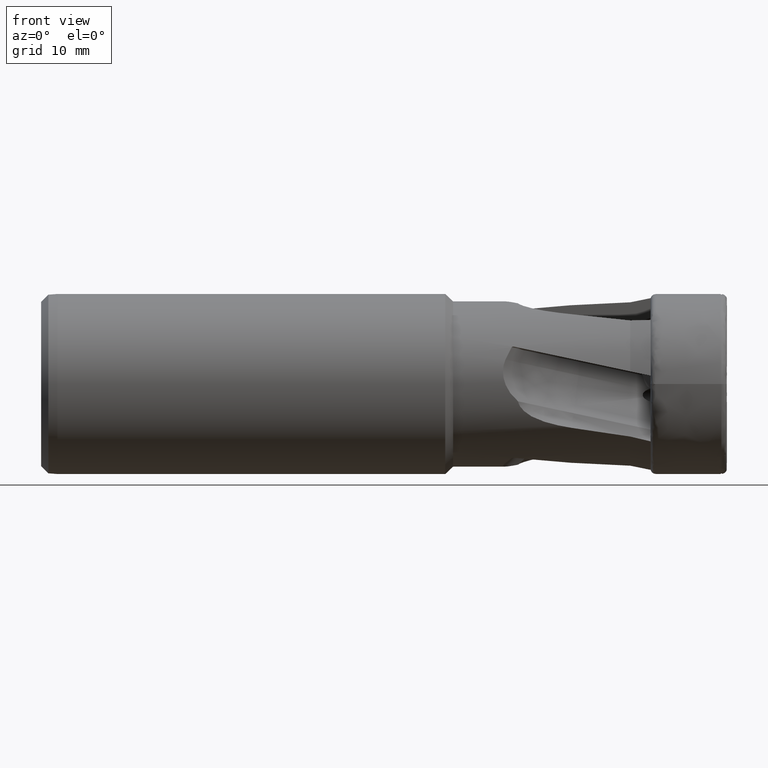
[diagram: clean part render]
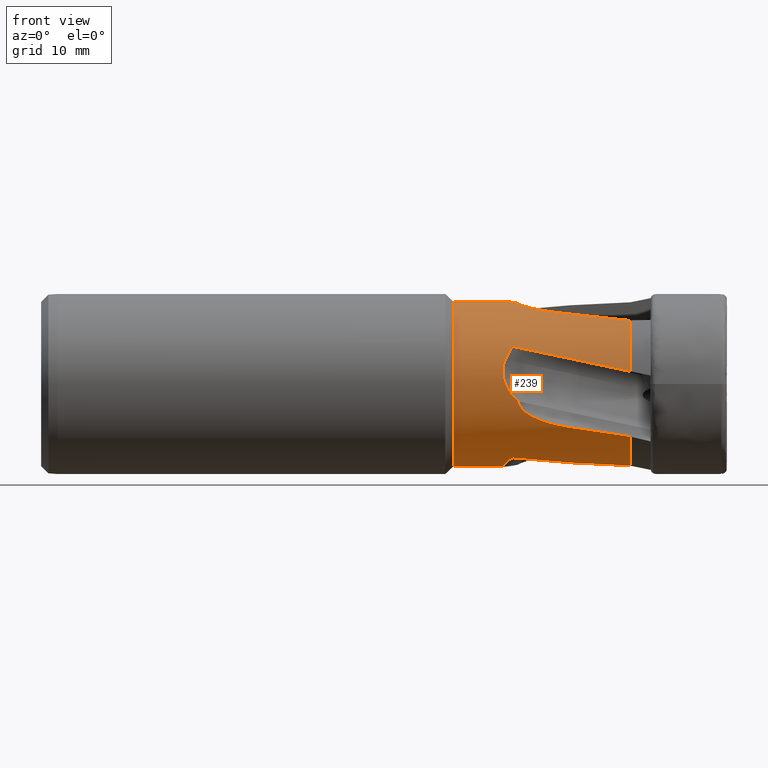
[diagram: same view with one face highlighted and labeled with its STEP entity id]
A machine part, front view. The second image highlights one B-rep face of the part: STEP entity #239.
In plain terms, the highlighted cylindrical surface (partial cylindrical patch) has radius 11.47 mm, axis along (1, -0, -0).
Its self-contained STEP definition (entity closure, byte-faithful):
#46 = LINE ( 'NONE', #5876, #49 ) ;
#49 = VECTOR ( 'NONE', #5875, 1000.000000000000000 ) ;
#175 = LINE ( 'NONE', #1548, #176 ) ;
#176 = VECTOR ( 'NONE', #1549, 1000.000000000000000 ) ;
#239 = ADVANCED_FACE ( 'NONE', ( #5425 ), #5401, .T. ) ;
#344 = VERTEX_POINT ( 'NONE', #7505 ) ;
#353 = VERTEX_POINT ( 'NONE', #7379 ) ;
#362 = VERTEX_POINT ( 'NONE', #7557 ) ;
#363 = VERTEX_POINT ( 'NONE', #7550 ) ;
#395 = VERTEX_POINT ( 'NONE', #7449 ) ;
#402 = VERTEX_POINT ( 'NONE', #7525 ) ;
#1331 = CARTESIAN_POINT ( 'NONE',  ( -12.83564090980896600, -1.707609156973199700, -11.34217664150144800 ) ) ;
#1333 = CARTESIAN_POINT ( 'NONE',  ( -20.94019709434659000, -6.138893819137329000, 9.688905133055930800 ) ) ;
#1336 = CARTESIAN_POINT ( 'NONE',  ( -12.83564090980896900, -7.334796149920546100, 8.818257505829072000 ) ) ;
#1342 = CARTESIAN_POINT ( 'NONE',  ( -20.94019709434659000, -9.715598794061284200, -6.096559691566625400 ) ) ;
#1344 = CARTESIAN_POINT ( 'NONE',  ( -28.99299443426411200, -5.141960667818126200, -10.25286011270081600 ) ) ;
#1351 = CARTESIAN_POINT ( 'NONE',  ( -28.99299443426402700, -10.23032654813843400, 5.186648119783528800 ) ) ;
#1353 = CARTESIAN_POINT ( 'NONE',  ( -12.83564090980898300, -8.850177546515995500, -7.296249543097644600 ) ) ;
#1472 = CARTESIAN_POINT ( 'NONE',  ( -12.83564090980896600, -11.33461784526522800, 1.757082326413891900 ) ) ;
#1482 = CARTESIAN_POINT ( 'NONE',  ( -18.46949985436407400, -11.14910405896588200, 2.953797950446352100 ) ) ;
#1488 = CARTESIAN_POINT ( 'NONE',  ( -23.90021819924628900, -10.77793590965708000, 4.106524220923940800 ) ) ;
#1489 = CARTESIAN_POINT ( 'NONE',  ( -28.99299443426402700, -10.23032654813843400, 5.186648119783528800 ) ) ;
#1548 = CARTESIAN_POINT ( 'NONE',  ( 0.0000000000000000000, 1.404669878622014200E-015, 11.47000000000000100 ) ) ;
#1549 = DIRECTION ( 'NONE',  ( 1.000000000000000000, -0.0000000000000000000, -0.0000000000000000000 ) ) ;
#1964 = EDGE_CURVE ( 'NONE', #395, #362, #7894, .T. ) ;
#1968 = EDGE_CURVE ( 'NONE', #4126, #4088, #2619, .T. ) ;
#1981 = EDGE_CURVE ( 'NONE', #7678, #395, #7882, .T. ) ;
#1982 = EDGE_CURVE ( 'NONE', #7700, #7720, #2590, .T. ) ;
#2058 =( BOUNDED_CURVE ( )  B_SPLINE_CURVE ( 3, ( #1472, #1482, #1488, #1489 ),
 .UNSPECIFIED., .F., .F. ) 
 B_SPLINE_CURVE_WITH_KNOTS ( ( 4, 4 ),
 ( 1.720227961580528700, 2.035655008558144600 ),
 .UNSPECIFIED. ) 
 CURVE ( )  GEOMETRIC_REPRESENTATION_ITEM ( )  RATIONAL_B_SPLINE_CURVE ( ( 1.000000000000000000, 0.9917259865312513200, 0.9917259865312513200, 1.000000000000000000 ) ) 
 REPRESENTATION_ITEM ( '' )  );
#2118 = EDGE_CURVE ( 'NONE', #4088, #4112, #4028, .T. ) ;
#2143 = EDGE_CURVE ( 'NONE', #4128, #344, #4061, .T. ) ;
#2149 = EDGE_CURVE ( 'NONE', #362, #4112, #4068, .T. ) ;
#2152 = EDGE_CURVE ( 'NONE', #4094, #402, #4041, .T. ) ;
#2156 = EDGE_CURVE ( 'NONE', #344, #363, #4060, .T. ) ;
#2157 = EDGE_CURVE ( 'NONE', #353, #4120, #4045, .T. ) ;
#2161 = EDGE_CURVE ( 'NONE', #402, #7751, #4063, .T. ) ;
#2164 = EDGE_CURVE ( 'NONE', #363, #353, #4025, .T. ) ;
#2250 = EDGE_CURVE ( 'NONE', #4099, #7583, #4767, .T. ) ;
#2353 = CARTESIAN_POINT ( 'NONE',  ( -12.83564090980896600, -11.33461784526522800, 1.757082326413891900 ) ) ;
#2379 = CARTESIAN_POINT ( 'NONE',  ( -30.20050388193823200, -8.673617379884037400E-016, -11.47000000000000800 ) ) ;
#2400 = CARTESIAN_POINT ( 'NONE',  ( -37.42000000000000900, 1.404669878622014200E-015, 11.47000000000000100 ) ) ;
#2417 = CARTESIAN_POINT ( 'NONE',  ( -37.42000000000000900, 0.0000000000000000000, -11.47000000000000100 ) ) ;
#2442 = CARTESIAN_POINT ( 'NONE',  ( -30.20050388193820000, 4.336808689942017700E-016, 11.47000000000000100 ) ) ;
#2590 = CIRCLE ( 'NONE', #3335, 11.47000000000000100 ) ;
#2619 = CIRCLE ( 'NONE', #3339, 11.47000000000000100 ) ;
#2623 = B_SPLINE_CURVE_WITH_KNOTS ( 'NONE', 3,
 ( #7264, #7299, #7257, #7256 ),
 .UNSPECIFIED., .F., .F.,
 ( 4, 4 ),
 ( 0.0000000000000000000, 0.008238768219979368500 ),
 .UNSPECIFIED. ) ;
#2624 = B_SPLINE_CURVE_WITH_KNOTS ( 'NONE', 3,
 ( #7273, #7272, #7267, #7266 ),
 .UNSPECIFIED., .F., .F.,
 ( 4, 4 ),
 ( 0.0000000000000000000, 0.008238768219979398000 ),
 .UNSPECIFIED. ) ;
#2886 = CARTESIAN_POINT ( 'NONE',  ( -30.34923730849577700, -2.824008630747531200, -11.12054325193721200 ) ) ;
#2954 = CARTESIAN_POINT ( 'NONE',  ( -29.33150218812901900, -5.009369270633657200, -10.31829053237169300 ) ) ;
#2959 = CARTESIAN_POINT ( 'NONE',  ( -12.83564090980896600, -1.707609156973199700, -11.34217664150144800 ) ) ;
#2960 = CARTESIAN_POINT ( 'NONE',  ( -28.99299443426411200, -5.141960667818126200, -10.25286011270081600 ) ) ;
#2965 = CARTESIAN_POINT ( 'NONE',  ( -30.15566330843127200, -3.352193005574833700, -10.96921610933898700 ) ) ;
#2969 = CARTESIAN_POINT ( 'NONE',  ( -29.91159439826444100, -3.933351167539182100, -10.79161414523776800 ) ) ;
#2975 = CARTESIAN_POINT ( 'NONE',  ( -23.90021819924637100, -4.059457661948039600, -10.79575134673645000 ) ) ;
#2976 = CARTESIAN_POINT ( 'NONE',  ( -18.46949985436410900, -2.905122843161645400, -11.16188626155323700 ) ) ;
#2984 = DIRECTION ( 'NONE',  ( 1.000000000000000000, -0.0000000000000000000, -0.0000000000000000000 ) ) ;
#2991 = DIRECTION ( 'NONE',  ( 0.0000000000000000000, 0.0000000000000000000, -1.000000000000000000 ) ) ;
#2997 = CARTESIAN_POINT ( 'NONE',  ( -30.20050388193823200, -8.673617379884037400E-016, -11.47000000000000800 ) ) ;
#3011 = CARTESIAN_POINT ( 'NONE',  ( -30.49853094884302600, -1.981474182609903400, -11.30125854086059300 ) ) ;
#3012 = CARTESIAN_POINT ( 'NONE',  ( -30.48230466896970000, -1.123798755020273700, -11.41836441503835100 ) ) ;
#3014 = CARTESIAN_POINT ( 'NONE',  ( -30.30192809661500400, -0.2711550998487489700, -11.46999999999999200 ) ) ;
#3020 = CARTESIAN_POINT ( 'NONE',  ( -30.38086668949659600, -0.5558729630017765800, -11.46005998262674400 ) ) ;
#3027 = CARTESIAN_POINT ( 'NONE',  ( -12.83564090980896900, 0.0000000000000000000, 0.0000000000000000000 ) ) ;
#3062 = DIRECTION ( 'NONE',  ( 1.000000000000000000, -0.0000000000000000000, -0.0000000000000000000 ) ) ;
#3063 = DIRECTION ( 'NONE',  ( 0.0000000000000000000, 0.0000000000000000000, -1.000000000000000000 ) ) ;
#3064 = CARTESIAN_POINT ( 'NONE',  ( -30.50609163687955000, -1.408920492449333900, -11.38681815037372000 ) ) ;
#3067 = CARTESIAN_POINT ( 'NONE',  ( -30.46620225963117400, -2.270360019682860400, -11.24664271441786300 ) ) ;
#3068 = CARTESIAN_POINT ( 'NONE',  ( -37.42000000000000900, 0.0000000000000000000, 0.0000000000000000000 ) ) ;
#3072 = CARTESIAN_POINT ( 'NONE',  ( -30.26486967845474400, -3.092159176463330700, -11.04868246085110300 ) ) ;
#3073 = CARTESIAN_POINT ( 'NONE',  ( -30.15566330843127200, -3.352193005574833700, -10.96921610933898700 ) ) ;
#3085 = CARTESIAN_POINT ( 'NONE',  ( -29.63782136507850900, -4.488875323919607800, -10.57098223300176300 ) ) ;
#3158 = EDGE_CURVE ( 'NONE', #7720, #7678, #46, .T. ) ;
#3211 = EDGE_CURVE ( 'NONE', #4128, #4126, #2624, .T. ) ;
#3215 = EDGE_CURVE ( 'NONE', #4094, #4099, #2623, .T. ) ;
#3335 = AXIS2_PLACEMENT_3D ( 'NONE', #3068, #3062, #3063 ) ;
#3339 = AXIS2_PLACEMENT_3D ( 'NONE', #3027, #2984, #2991 ) ;
#3400 = AXIS2_PLACEMENT_3D ( 'NONE', #4839, #5057, #4915 ) ;
#3552 = EDGE_LOOP ( 'NONE', ( #7815, #7829, #7875, #7868, #7807, #7761, #7832, #7831, #7805, #7793, #7839, #7827, #7792, #7809, #7838, #7781, #7819, #7765 ) ) ;
#3603 = CARTESIAN_POINT ( 'NONE',  ( -22.38875316802942800, -9.866927040030738300, -5.851520453391623600 ) ) ;
#3629 = CARTESIAN_POINT ( 'NONE',  ( -29.33150218812901900, -5.009369270633657200, -10.31829053237169300 ) ) ;
#3673 = CARTESIAN_POINT ( 'NONE',  ( -29.33150218812901900, -10.29633488223327100, 5.054343477931271700 ) ) ;
#3674 = CARTESIAN_POINT ( 'NONE',  ( -29.63782136507848400, -10.55129525349080700, 4.534957057988048500 ) ) ;
#3685 = CARTESIAN_POINT ( 'NONE',  ( -29.91159439826444500, -10.77434898917947200, 3.980400875068261300 ) ) ;
#3686 = CARTESIAN_POINT ( 'NONE',  ( -21.67064623765212200, -9.781469039307250300, -5.991587558486152400 ) ) ;
#3687 = CARTESIAN_POINT ( 'NONE',  ( -30.20050388193820000, 4.336808689942017700E-016, 11.47000000000000100 ) ) ;
#3688 = CARTESIAN_POINT ( 'NONE',  ( -30.11095661654476500, -0.2394023731543562000, 11.46999999999999400 ) ) ;
#3689 = CARTESIAN_POINT ( 'NONE',  ( -30.00370433265183200, -0.4706353598244071300, 11.46253275991387400 ) ) ;
#3690 = CARTESIAN_POINT ( 'NONE',  ( -29.75674708534769800, -0.9181651207829836200, 11.43538926862541600 ) ) ;
#3691 = CARTESIAN_POINT ( 'NONE',  ( -29.61603387988804700, -1.135492285230514900, 11.41552093078661500 ) ) ;
#3692 = CARTESIAN_POINT ( 'NONE',  ( -29.16037486312173100, -1.750160229267142100, 11.34319543056862600 ) ) ;
#3695 = CARTESIAN_POINT ( 'NONE',  ( -30.15566330843096700, -10.95448503544154500, 3.400023177609703000 ) ) ;
#3699 = CARTESIAN_POINT ( 'NONE',  ( -28.42267365700054800, -2.448017027925284900, 11.20571785433618600 ) ) ;
#3700 = CARTESIAN_POINT ( 'NONE',  ( -28.81011997143607700, -2.116152848524531600, 11.27821737401822800 ) ) ;
#3701 = CARTESIAN_POINT ( 'NONE',  ( -28.99299443426402700, -10.23032654813843400, 5.186648119783528800 ) ) ;
#3702 = CARTESIAN_POINT ( 'NONE',  ( -29.05766759824245700, -10.22337245701027600, 5.200364612871850600 ) ) ;
#3703 = CARTESIAN_POINT ( 'NONE',  ( -29.12581600605365800, -10.22760747729896400, 5.192073399667410000 ) ) ;
#3704 = CARTESIAN_POINT ( 'NONE',  ( -29.24687288060064800, -10.25112520359361300, 5.145484715503831900 ) ) ;
#3707 = CARTESIAN_POINT ( 'NONE',  ( -30.15566330843096700, -10.95448503544154500, 3.400023177609703000 ) ) ;
#3708 = CARTESIAN_POINT ( 'NONE',  ( -30.25847555195190400, -11.03036602758681200, 3.155543316883636400 ) ) ;
#3709 = CARTESIAN_POINT ( 'NONE',  ( -30.33925637410930100, -11.09953603261637800, 2.903835606415913900 ) ) ;
#3710 = CARTESIAN_POINT ( 'NONE',  ( -30.45510304833622700, -11.22245465917618800, 2.385051947269273100 ) ) ;
#3711 = CARTESIAN_POINT ( 'NONE',  ( -30.49014224607248000, -11.27666047621134200, 2.114813254976596100 ) ) ;
#3712 = CARTESIAN_POINT ( 'NONE',  ( -30.50953663413972100, -11.36454359107872800, 1.575644492150149100 ) ) ;
#3713 = CARTESIAN_POINT ( 'NONE',  ( -30.49460029452593400, -11.39845312780913200, 1.307049672325895500 ) ) ;
#3714 = CARTESIAN_POINT ( 'NONE',  ( -30.41701137103339300, -11.44715759235791300, 0.7718131953468403400 ) ) ;
#3715 = CARTESIAN_POINT ( 'NONE',  ( -30.35323390664180500, -11.46194708512609500, 0.5022812641813572100 ) ) ;
#3716 = CARTESIAN_POINT ( 'NONE',  ( -26.85252002963532200, -10.62559435387051500, -4.325541661869372100 ) ) ;
#3717 = CARTESIAN_POINT ( 'NONE',  ( -30.18270847626818200, -11.47293359298711800, -0.01766979020505024500 ) ) ;
#3718 = CARTESIAN_POINT ( 'NONE',  ( -30.07668378876319800, -11.46942171366821300, -0.2680992874868335400 ) ) ;
#3719 = CARTESIAN_POINT ( 'NONE',  ( -29.82727538318166800, -11.44789422524673800, -0.7518174522297199600 ) ) ;
#3720 = CARTESIAN_POINT ( 'NONE',  ( -29.68254670742442200, -11.42965249250480800, -0.9867488136089629400 ) ) ;
#3721 = CARTESIAN_POINT ( 'NONE',  ( -29.20677652288266700, -11.35916472900718300, -1.652027221809458900 ) ) ;
#3722 = CARTESIAN_POINT ( 'NONE',  ( -29.30031560079663700, -10.27037717379430500, 5.107222602595022900 ) ) ;
#3723 = CARTESIAN_POINT ( 'NONE',  ( -28.42267365700053400, -11.21629263940570100, -2.399099711811515200 ) ) ;
#3724 = CARTESIAN_POINT ( 'NONE',  ( -29.33150218812901900, -10.29633488223327100, 5.054343477931271700 ) ) ;
#3727 = CARTESIAN_POINT ( 'NONE',  ( -28.42267365700054800, -2.448017027925284900, 11.20571785433618600 ) ) ;
#3731 = CARTESIAN_POINT ( 'NONE',  ( -28.38128940841497200, -2.628404940429893300, 11.16631005492663700 ) ) ;
#3732 = CARTESIAN_POINT ( 'NONE',  ( -28.31627200554540700, -2.798904135911209700, 11.12454172107736700 ) ) ;
#3736 = CARTESIAN_POINT ( 'NONE',  ( -28.14925201314615700, -3.124479416761980000, 11.03752332909166300 ) ) ;
#3737 = CARTESIAN_POINT ( 'NONE',  ( -28.04813317728602200, -3.276997817959602000, 10.99290636081781300 ) ) ;
#3738 = CARTESIAN_POINT ( 'NONE',  ( -27.82477673354038200, -3.558910634942865000, 10.90490073540842700 ) ) ;
#3739 = CARTESIAN_POINT ( 'NONE',  ( -27.70163662046766400, -3.689780292182266700, 10.86109600382538100 ) ) ;
#3741 = CARTESIAN_POINT ( 'NONE',  ( -27.43703986808262100, -3.935611717225487600, 10.77445336989889700 ) ) ;
#3742 = CARTESIAN_POINT ( 'NONE',  ( -27.29474932103134000, -4.051041898021791700, 10.73140839083434500 ) ) ;
#3743 = CARTESIAN_POINT ( 'NONE',  ( -26.85252002963532200, -4.371863240330474900, 10.60661952977572400 ) ) ;
#3744 = CARTESIAN_POINT ( 'NONE',  ( -26.53656567565134600, -4.553745286817974900, 10.52879721570083000 ) ) ;
#3745 = CARTESIAN_POINT ( 'NONE',  ( -25.87649857427854600, -4.876133737347791100, 10.38342365128501900 ) ) ;
#3746 = CARTESIAN_POINT ( 'NONE',  ( -25.53899330120280500, -5.013240458507537400, 10.31731669715239800 ) ) ;
#3747 = CARTESIAN_POINT ( 'NONE',  ( -24.51232620861851100, -5.380103055833165700, 10.13361761688491400 ) ) ;
#3748 = CARTESIAN_POINT ( 'NONE',  ( -23.80966789597350100, -5.567450871091364400, 10.02995671115953200 ) ) ;
#3749 = CARTESIAN_POINT ( 'NONE',  ( -22.38875316802941400, -5.894517205499947300, 9.841301120472600400 ) ) ;
#3750 = CARTESIAN_POINT ( 'NONE',  ( -28.83581411299563500, -11.29205529414360100, -2.044893464153673800 ) ) ;
#3751 = CARTESIAN_POINT ( 'NONE',  ( -20.94019709434659000, -6.138893819137329000, 9.688905133055930800 ) ) ;
#3763 = CARTESIAN_POINT ( 'NONE',  ( -21.67064623765211500, -6.034210097568572600, 9.755232777147540400 ) ) ;
#3764 = CARTESIAN_POINT ( 'NONE',  ( -28.99299443426411200, -5.141960667818126200, -10.25286011270081600 ) ) ;
#3765 = CARTESIAN_POINT ( 'NONE',  ( -29.05766759824246400, -5.155707373185683700, -10.24596593707225100 ) ) ;
#3766 = CARTESIAN_POINT ( 'NONE',  ( -29.12581600605370700, -5.147397760204261100, -10.25016473991904900 ) ) ;
#3767 = CARTESIAN_POINT ( 'NONE',  ( -29.24687288060066900, -5.100706904417874600, -10.27347896150371700 ) ) ;
#3773 = CARTESIAN_POINT ( 'NONE',  ( -25.87649857427853900, -10.40460088818537300, -4.830781231243937800 ) ) ;
#3774 = CARTESIAN_POINT ( 'NONE',  ( -25.53899330120280500, -10.33909280237273800, -4.968175092333268600 ) ) ;
#3775 = CARTESIAN_POINT ( 'NONE',  ( -26.53656567565134600, -10.54856638823013200, -4.507761539796442600 ) ) ;
#3777 = CARTESIAN_POINT ( 'NONE',  ( -23.80966789597351200, -10.05415374327876600, -5.523634069728351500 ) ) ;
#3778 = CARTESIAN_POINT ( 'NONE',  ( -24.51232620861851400, -10.15699620576523500, -5.335835733293910400 ) ) ;
#3779 = CARTESIAN_POINT ( 'NONE',  ( -20.94019709434659000, -9.715598794061284200, -6.096559691566625400 ) ) ;
#3795 = CARTESIAN_POINT ( 'NONE',  ( -27.70163662046765300, -10.87709226662692800, -3.642354847097264400 ) ) ;
#3796 = CARTESIAN_POINT ( 'NONE',  ( -28.42267365700053400, -11.21629263940570100, -2.399099711811515200 ) ) ;
#3800 = CARTESIAN_POINT ( 'NONE',  ( -29.30031560079664400, -5.062361153436483200, -10.29256379900701500 ) ) ;
#3821 = CARTESIAN_POINT ( 'NONE',  ( -27.29474932103134300, -10.74898218428747400, -4.004178881152552300 ) ) ;
#3822 = CARTESIAN_POINT ( 'NONE',  ( -27.43703986808262100, -10.79152309601524700, -3.888561980611565000 ) ) ;
#3826 = CARTESIAN_POINT ( 'NONE',  ( -28.38128940841497200, -11.17767230338350800, -2.579657855570258300 ) ) ;
#3828 = CARTESIAN_POINT ( 'NONE',  ( -28.31627200554540700, -11.13664830786135500, -2.750337676181021900 ) ) ;
#3829 = CARTESIAN_POINT ( 'NONE',  ( -28.14925201314616000, -11.05105132987383800, -3.076289545947464200 ) ) ;
#3843 = CARTESIAN_POINT ( 'NONE',  ( -28.04813317728601900, -11.00710027127741400, -3.229001172911763800 ) ) ;
#3844 = CARTESIAN_POINT ( 'NONE',  ( -27.82477673354037500, -10.92032555642998100, -3.511295302050650300 ) ) ;
#4025 = B_SPLINE_CURVE_WITH_KNOTS ( 'NONE', 3,
 ( #3695, #3685, #3674, #3673 ),
 .UNSPECIFIED., .F., .F.,
 ( 4, 4 ),
 ( 1.846971416669974200E-016, 0.001964467069885912300 ),
 .UNSPECIFIED. ) ;
#4028 =( BOUNDED_CURVE ( )  B_SPLINE_CURVE ( 3, ( #2959, #2976, #2975, #2960 ),
 .UNSPECIFIED., .F., .T. ) 
 B_SPLINE_CURVE_WITH_KNOTS ( ( 4, 4 ),
 ( 1.720227961580528700, 2.035655008558146900 ),
 .UNSPECIFIED. ) 
 CURVE ( )  GEOMETRIC_REPRESENTATION_ITEM ( )  RATIONAL_B_SPLINE_CURVE ( ( 1.000000000000000000, 0.9917259865312512100, 0.9917259865312512100, 1.000000000000000000 ) ) 
 REPRESENTATION_ITEM ( '' )  );
#4041 = B_SPLINE_CURVE_WITH_KNOTS ( 'NONE', 3,
 ( #3751, #3763, #3749, #3748, #3747, #3746, #3745, #3744, #3743, #3742, #3741, #3739, #3738, #3737, #3736, #3732, #3731, #3727 ),
 .UNSPECIFIED., .F., .F.,
 ( 4, 2, 2, 2, 2, 2, 2, 2, 4 ),
 ( 0.0000000000000000000, 0.002203652767377406800, 0.004407305534754813600, 0.005509131918443522200, 0.006610958302132229100, 0.007161871493976582900, 0.007712784685820936800, 0.008263697877665291500, 0.008814611069509644500 ),
 .UNSPECIFIED. ) ;
#4045 = B_SPLINE_CURVE_WITH_KNOTS ( 'NONE', 3,
 ( #3724, #3722, #3704, #3703, #3702, #3701 ),
 .UNSPECIFIED., .F., .F.,
 ( 4, 2, 4 ),
 ( 0.0000000000000000000, 0.0001958525722423243800, 0.0003917051444846487500 ),
 .UNSPECIFIED. ) ;
#4060 = B_SPLINE_CURVE_WITH_KNOTS ( 'NONE', 3,
 ( #3723, #3750, #3721, #3720, #3719, #3718, #3717, #3715, #3714, #3713, #3712, #3711, #3710, #3709, #3708, #3707 ),
 .UNSPECIFIED., .F., .F.,
 ( 4, 2, 2, 2, 2, 2, 2, 4 ),
 ( 2.309239659435260500E-016, 0.001632512430829516400, 0.002448768646244162000, 0.003265024861658807300, 0.004081281077073452600, 0.004897537292488098400, 0.005713793507902744200, 0.006530049723317389900 ),
 .UNSPECIFIED. ) ;
#4061 = B_SPLINE_CURVE_WITH_KNOTS ( 'NONE', 3,
 ( #3779, #3686, #3603, #3777, #3778, #3774, #3773, #3775, #3716, #3821, #3822, #3795, #3844, #3843, #3829, #3828, #3826, #3796 ),
 .UNSPECIFIED., .F., .F.,
 ( 4, 2, 2, 2, 2, 2, 2, 2, 4 ),
 ( 3.576224061345498000E-018, 0.002203652767377406800, 0.004407305534754810100, 0.005509131918443517000, 0.006610958302132222100, 0.007161871493976575100, 0.007712784685820928100, 0.008263697877665281100, 0.008814611069509634100 ),
 .UNSPECIFIED. ) ;
#4063 = B_SPLINE_CURVE_WITH_KNOTS ( 'NONE', 3,
 ( #3699, #3700, #3692, #3691, #3690, #3689, #3688, #3687 ),
 .UNSPECIFIED., .F., .F.,
 ( 4, 2, 2, 4 ),
 ( 2.684789329430344600E-016, 0.001530982781804084300, 0.002296474172705995900, 0.003061965563607907100 ),
 .UNSPECIFIED. ) ;
#4068 = B_SPLINE_CURVE_WITH_KNOTS ( 'NONE', 3,
 ( #3629, #3800, #3767, #3766, #3765, #3764 ),
 .UNSPECIFIED., .F., .F.,
 ( 4, 2, 4 ),
 ( 1.734723475976807100E-018, 0.0001958525722422806500, 0.0003917051444845595800 ),
 .UNSPECIFIED. ) ;
#4088 = VERTEX_POINT ( 'NONE', #1331 ) ;
#4094 = VERTEX_POINT ( 'NONE', #1333 ) ;
#4099 = VERTEX_POINT ( 'NONE', #1336 ) ;
#4112 = VERTEX_POINT ( 'NONE', #1344 ) ;
#4120 = VERTEX_POINT ( 'NONE', #1351 ) ;
#4126 = VERTEX_POINT ( 'NONE', #1353 ) ;
#4128 = VERTEX_POINT ( 'NONE', #1342 ) ;
#4767 = CIRCLE ( 'NONE', #5090, 11.47000000000000100 ) ;
#4839 = CARTESIAN_POINT ( 'NONE',  ( 0.0000000000000000000, 0.0000000000000000000, 0.0000000000000000000 ) ) ;
#4915 = DIRECTION ( 'NONE',  ( 0.0000000000000000000, 0.0000000000000000000, -1.000000000000000000 ) ) ;
#5057 = DIRECTION ( 'NONE',  ( 1.000000000000000000, -0.0000000000000000000, -0.0000000000000000000 ) ) ;
#5090 = AXIS2_PLACEMENT_3D ( 'NONE', #8040, #8044, #7976 ) ;
#5401 = CYLINDRICAL_SURFACE ( 'NONE', #3400, 11.47000000000000100 ) ;
#5425 = FACE_OUTER_BOUND ( 'NONE', #3552, .T. ) ;
#5548 = EDGE_CURVE ( 'NONE', #7583, #4120, #2058, .T. ) ;
#5569 = EDGE_CURVE ( 'NONE', #7700, #7751, #175, .T. ) ;
#5875 = DIRECTION ( 'NONE',  ( 1.000000000000000000, -0.0000000000000000000, -0.0000000000000000000 ) ) ;
#5876 = CARTESIAN_POINT ( 'NONE',  ( 0.0000000000000000000, 0.0000000000000000000, -11.47000000000000100 ) ) ;
#7256 = CARTESIAN_POINT ( 'NONE',  ( -12.83564090980896900, -7.334796149920546100, 8.818257505829072000 ) ) ;
#7257 = CARTESIAN_POINT ( 'NONE',  ( -15.54837256523467600, -7.004101634018358200, 9.093320562270317700 ) ) ;
#7264 = CARTESIAN_POINT ( 'NONE',  ( -20.94019709434659000, -6.138893819137329000, 9.688905133055930800 ) ) ;
#7266 = CARTESIAN_POINT ( 'NONE',  ( -12.83564090980898300, -8.850177546515995500, -7.296249543097644600 ) ) ;
#7267 = CARTESIAN_POINT ( 'NONE',  ( -15.54837256523468300, -9.123795062103427600, -6.964357989980397800 ) ) ;
#7272 = CARTESIAN_POINT ( 'NONE',  ( -18.24875950549887400, -9.424541287173184400, -6.560394724107389700 ) ) ;
#7273 = CARTESIAN_POINT ( 'NONE',  ( -20.94019709434659000, -9.715598794061284200, -6.096559691566625400 ) ) ;
#7299 = CARTESIAN_POINT ( 'NONE',  ( -18.24875950549888500, -6.601454462380683500, 9.395826541121447700 ) ) ;
#7379 = CARTESIAN_POINT ( 'NONE',  ( -29.33150218812901900, -10.29633488223327100, 5.054343477931271700 ) ) ;
#7449 = CARTESIAN_POINT ( 'NONE',  ( -30.15566330843127200, -3.352193005574833700, -10.96921610933898700 ) ) ;
#7505 = CARTESIAN_POINT ( 'NONE',  ( -28.42267365700053400, -11.21629263940570100, -2.399099711811515200 ) ) ;
#7525 = CARTESIAN_POINT ( 'NONE',  ( -28.42267365700054800, -2.448017027925284900, 11.20571785433618600 ) ) ;
#7550 = CARTESIAN_POINT ( 'NONE',  ( -30.15566330843096700, -10.95448503544154500, 3.400023177609703000 ) ) ;
#7557 = CARTESIAN_POINT ( 'NONE',  ( -29.33150218812901900, -5.009369270633657200, -10.31829053237169300 ) ) ;
#7583 = VERTEX_POINT ( 'NONE', #2353 ) ;
#7678 = VERTEX_POINT ( 'NONE', #2379 ) ;
#7700 = VERTEX_POINT ( 'NONE', #2400 ) ;
#7720 = VERTEX_POINT ( 'NONE', #2417 ) ;
#7751 = VERTEX_POINT ( 'NONE', #2442 ) ;
#7761 = ORIENTED_EDGE ( 'NONE', *, *, #2149, .T. ) ;
#7765 = ORIENTED_EDGE ( 'NONE', *, *, #2161, .T. ) ;
#7781 = ORIENTED_EDGE ( 'NONE', *, *, #3215, .F. ) ;
#7792 = ORIENTED_EDGE ( 'NONE', *, *, #2157, .T. ) ;
#7793 = ORIENTED_EDGE ( 'NONE', *, *, #2143, .T. ) ;
#7805 = ORIENTED_EDGE ( 'NONE', *, *, #3211, .F. ) ;
#7807 = ORIENTED_EDGE ( 'NONE', *, *, #1964, .T. ) ;
#7809 = ORIENTED_EDGE ( 'NONE', *, *, #5548, .F. ) ;
#7815 = ORIENTED_EDGE ( 'NONE', *, *, #5569, .F. ) ;
#7819 = ORIENTED_EDGE ( 'NONE', *, *, #2152, .T. ) ;
#7827 = ORIENTED_EDGE ( 'NONE', *, *, #2164, .T. ) ;
#7829 = ORIENTED_EDGE ( 'NONE', *, *, #1982, .T. ) ;
#7831 = ORIENTED_EDGE ( 'NONE', *, *, #1968, .F. ) ;
#7832 = ORIENTED_EDGE ( 'NONE', *, *, #2118, .F. ) ;
#7838 = ORIENTED_EDGE ( 'NONE', *, *, #2250, .F. ) ;
#7839 = ORIENTED_EDGE ( 'NONE', *, *, #2156, .T. ) ;
#7868 = ORIENTED_EDGE ( 'NONE', *, *, #1981, .T. ) ;
#7875 = ORIENTED_EDGE ( 'NONE', *, *, #3158, .T. ) ;
#7882 = B_SPLINE_CURVE_WITH_KNOTS ( 'NONE', 3,
 ( #2997, #3014, #3020, #3012, #3064, #3011, #3067, #2886, #3072, #3073 ),
 .UNSPECIFIED., .F., .F.,
 ( 4, 2, 2, 2, 4 ),
 ( 0.003061965563608005600, 0.003928986603535330900, 0.004796007643462655300, 0.005663028683389982300, 0.006530049723317308400 ),
 .UNSPECIFIED. ) ;
#7894 = B_SPLINE_CURVE_WITH_KNOTS ( 'NONE', 3,
 ( #2965, #2969, #3085, #2954 ),
 .UNSPECIFIED., .F., .F.,
 ( 4, 4 ),
 ( 7.204847710556567800E-018, 0.001964467069885925700 ),
 .UNSPECIFIED. ) ;
#7976 = DIRECTION ( 'NONE',  ( 0.0000000000000000000, 0.0000000000000000000, -1.000000000000000000 ) ) ;
#8040 = CARTESIAN_POINT ( 'NONE',  ( -12.83564090980896900, 0.0000000000000000000, 0.0000000000000000000 ) ) ;
#8044 = DIRECTION ( 'NONE',  ( 1.000000000000000000, -0.0000000000000000000, -0.0000000000000000000 ) ) ;